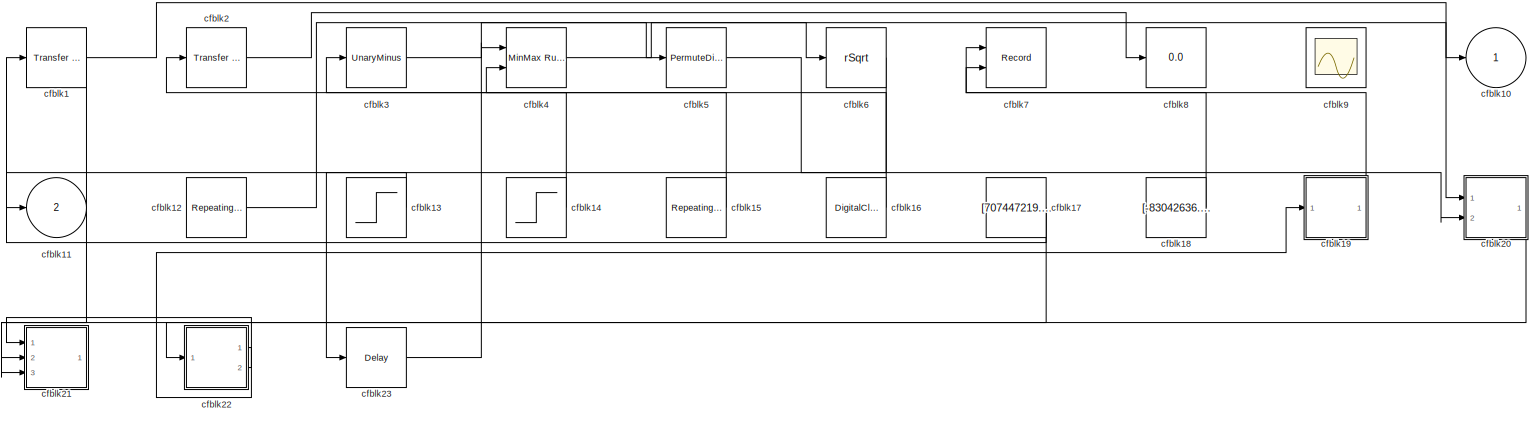
[diagram: root canvas - part 1/1, most of the canvas]
MODEL slx_bc03a1368fae
KIND model
CONFIG AbsTol = auto
CONFIG EnableMultiTasking = off
CONFIG FixedStep = auto
CONFIG MaxStep = auto
CONFIG MinStep = auto
CONFIG RelTol = 1e-3
CONFIG SampleTimeConstraint = Unconstrained
CONFIG SolverName = VariableStepAuto
CONFIG StartTime = 0.0
CONFIG StopTime = 10.0
BLOCK [Reference] cfblk1  REF=simulink/Discrete/Transfer Fcn
First Order
  Ports = [1, 1]
  SourceBlock = simulink/Discrete/Transfer Fcn\nFirst Order
  SourceProductBaseCode = SL
  SourceType = First Order Transfer Fcn
BLOCK [Outport] cfblk10
BLOCK [Outport] cfblk11
  Port = 2
BLOCK [Reference] cfblk12  REF=simulink/Sources/Repeating
Sequence
  Ports = [0, 1]
  SourceBlock = simulink/Sources/Repeating\nSequence
  SourceProductBaseCode = SL
  SourceType = Repeating table
BLOCK [Step] cfblk13
  After = [-850501123.088467]
  Before = [-93530363.756993]
  SampleTime = 0
  Time = [7.000000]
BLOCK [Step] cfblk14
  After = [837901136.616507]
  Before = [407303283.856135]
  SampleTime = 0
  Time = [33.000000]
BLOCK [Reference] cfblk15  REF=simulink/Sources/Repeating
Sequence
  Ports = [0, 1]
  SourceBlock = simulink/Sources/Repeating\nSequence
  SourceProductBaseCode = SL
  SourceType = Repeating table
BLOCK [DigitalClock] cfblk16
BLOCK [Constant] cfblk17
  SampleTime = 1
  Value = [707447219.623145]
BLOCK [Constant] cfblk18
  SampleTime = 1
  Value = [-83042636.161431]
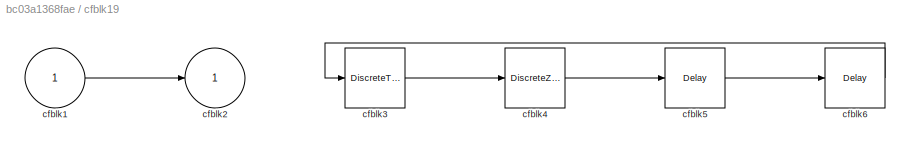
BLOCK [SubSystem] cfblk19
  Ports = [1, 1]
  RequestExecContextInheritance = off
BLOCK [Inport] cfblk19/cfblk1
BLOCK [Outport] cfblk19/cfblk2
BLOCK [DiscreteTransferFcn] cfblk19/cfblk3
  InputPortMap = u0
  Ports = [1, 1]
  SampleTime = 1
BLOCK [DiscreteZeroPole] cfblk19/cfblk4
  Gain = 1
  Poles = [0 0.5]
BLOCK [Delay] cfblk19/cfblk5
  InputPortMap = u0
  Ports = [1, 1]
  SampleTime = 1
BLOCK [Delay] cfblk19/cfblk6
  InputPortMap = u0
  Ports = [1, 1]
  SampleTime = 1
BLOCK [Reference] cfblk2  REF=simulink/Discrete/Transfer Fcn
First Order
  Ports = [1, 1]
  SourceBlock = simulink/Discrete/Transfer Fcn\nFirst Order
  SourceProductBaseCode = SL
  SourceType = First Order Transfer Fcn
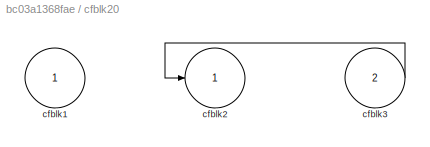
BLOCK [SubSystem] cfblk20
  Ports = [2, 1]
  RequestExecContextInheritance = off
BLOCK [Inport] cfblk20/cfblk1
BLOCK [Outport] cfblk20/cfblk2
BLOCK [Inport] cfblk20/cfblk3
  Port = 2
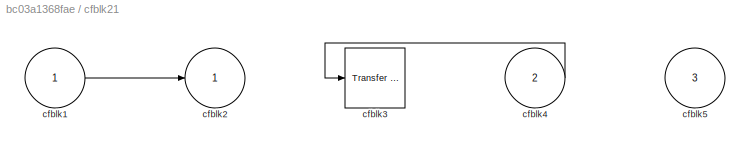
BLOCK [SubSystem] cfblk21
  Ports = [3, 1]
  RequestExecContextInheritance = off
BLOCK [Inport] cfblk21/cfblk1
BLOCK [Outport] cfblk21/cfblk2
BLOCK [Reference] cfblk21/cfblk3  REF=simulink/Discrete/Transfer Fcn
First Order
  Ports = [1, 1]
  SourceBlock = simulink/Discrete/Transfer Fcn\nFirst Order
  SourceProductBaseCode = SL
  SourceType = First Order Transfer Fcn
BLOCK [Inport] cfblk21/cfblk4
  Port = 2
BLOCK [Inport] cfblk21/cfblk5
  Port = 3
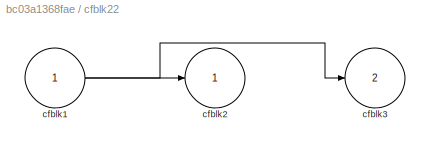
BLOCK [SubSystem] cfblk22
  Ports = [1, 2]
  RequestExecContextInheritance = off
BLOCK [Inport] cfblk22/cfblk1
BLOCK [Outport] cfblk22/cfblk2
BLOCK [Outport] cfblk22/cfblk3
  Port = 2
BLOCK [Delay] cfblk23
  InputPortMap = u0
  Ports = [1, 1]
  SampleTime = 1
BLOCK [UnaryMinus] cfblk3
BLOCK [Reference] cfblk4  REF=simulink/Math
Operations/MinMax
Running
Resettable
  Ports = [2, 1]
  SourceBlock = simulink/Math\nOperations/MinMax\nRunning\nResettable
  SourceProductBaseCode = SL
  SourceType = MinMax Running Resettable
BLOCK [PermuteDimensions] cfblk5
BLOCK [Sqrt] cfblk6
  AlgorithmType = Newton-Raphson
  Operator = rSqrt
BLOCK [Record] cfblk7
  CompatibilityTag = XY
  FileSettingsInternal = {"entries":[{"content":{"excelSettings":{"content":{},"type":"Streamout.ExcelSettings"}},"type":"Streamout.FileSettingStorage","uuid":"dcc2fbcf-9eeb-4f5c-ab26-c068f2b21078"}],"packageUris":["http://schema.mathworks.com/mf0/streamout_blocks/R2020a"],"version":"1.0"}
  Layout = [1 1]
  Ports = [2]
  SignalsInternal = {"entries":[{"content":{"signals":[{"content":{"blockPath":["sampleModel16/cfblk7"],"channel":[],"dimensions":[1],"domain":"sampleModel16/cfblk7","lineColor":"#a2142f","plots":[1],"port":1,"sid":[""],"signalID":642,"signalName":"cfblk18"},"type":"RecordBlkView.Signal","uuid":"e116d46d-13e1-49b0-9399-3440b7c1db51"},{"content":{"blockPath":["sampleModel16/cfblk7"],"channel":[],"dimensions":[1,1],"do...<+375ch>
  VisualizationBindings = {"xyplotplugin":{"info":[{"series":[{"bindingParametersList":[{"parameter":"X-Axis","signalID":642,"signalName":"cfblk18"},{"parameter":"Y-Axis","signalID":646,"signalName":"cfblk19"}],"seriesID":42967}],"subplotID":1}]}}
BLOCK [Display] cfblk8
  Decimation = 1
  Ports = [1]
BLOCK [Scope] cfblk9
  Floating = on
  NumInputPorts = 1
  Ports = []
LINE cfblk12:1 -> cfblk5:1
LINE cfblk13:1 -> cfblk11:1
LINE cfblk14:1 -> cfblk4:2
LINE cfblk15:1 -> cfblk2:1
LINE cfblk16:1 -> cfblk3:1
NET cfblk17:1 -> cfblk1:1, cfblk21:2
LINE cfblk18:1 -> cfblk7:1
LINE cfblk19/cfblk1:1 -> cfblk19/cfblk2:1
LINE cfblk19/cfblk3:1 -> cfblk19/cfblk4:1
LINE cfblk19/cfblk4:1 -> cfblk19/cfblk5:1
LINE cfblk19/cfblk5:1 -> cfblk19/cfblk6:1
LINE cfblk19/cfblk6:1 -> cfblk19/cfblk3:1
LINE cfblk19:1 -> cfblk7:2
NET cfblk1:1 -> cfblk20:1, cfblk21:3
LINE cfblk20/cfblk3:1 -> cfblk20/cfblk2:1
LINE cfblk20:1 -> cfblk22:1
LINE cfblk21/cfblk1:1 -> cfblk21/cfblk2:1
LINE cfblk21/cfblk4:1 -> cfblk21/cfblk3:1
NET cfblk22/cfblk1:1 -> cfblk22/cfblk2:1, cfblk22/cfblk3:1
LINE cfblk22:1 -> cfblk19:1
LINE cfblk22:2 -> cfblk21:1
LINE cfblk23:1 -> cfblk4:1
LINE cfblk2:1 -> cfblk8:1
LINE cfblk3:1 -> cfblk10:1
LINE cfblk4:1 -> cfblk6:1
LINE cfblk5:1 -> cfblk20:2
LINE cfblk6:1 -> cfblk23:1
note: NET lines group one-source signal fan-out (src -> all destinations, sorted); 1:1 wires keep LINE
